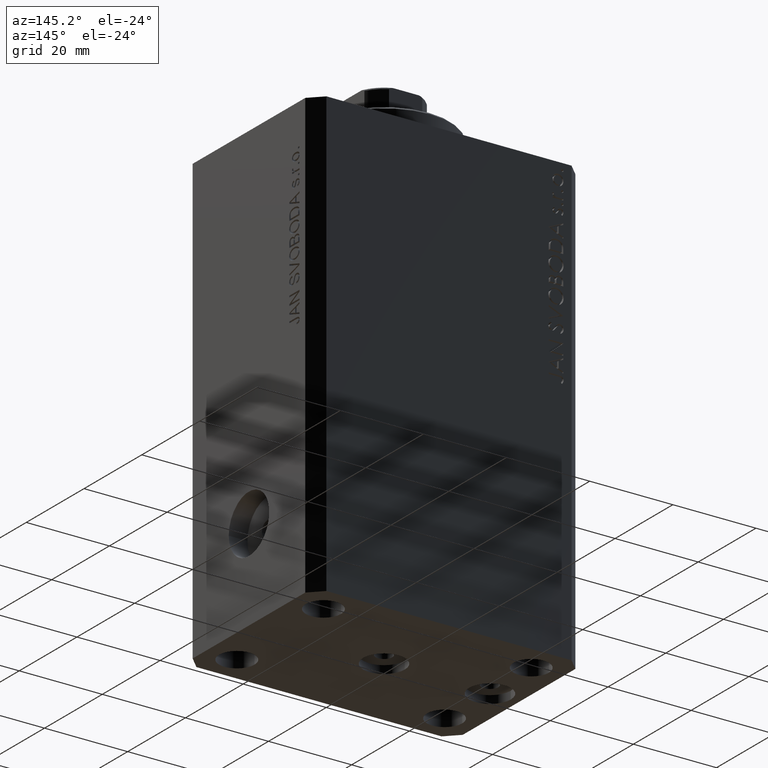
[diagram: clean part render]
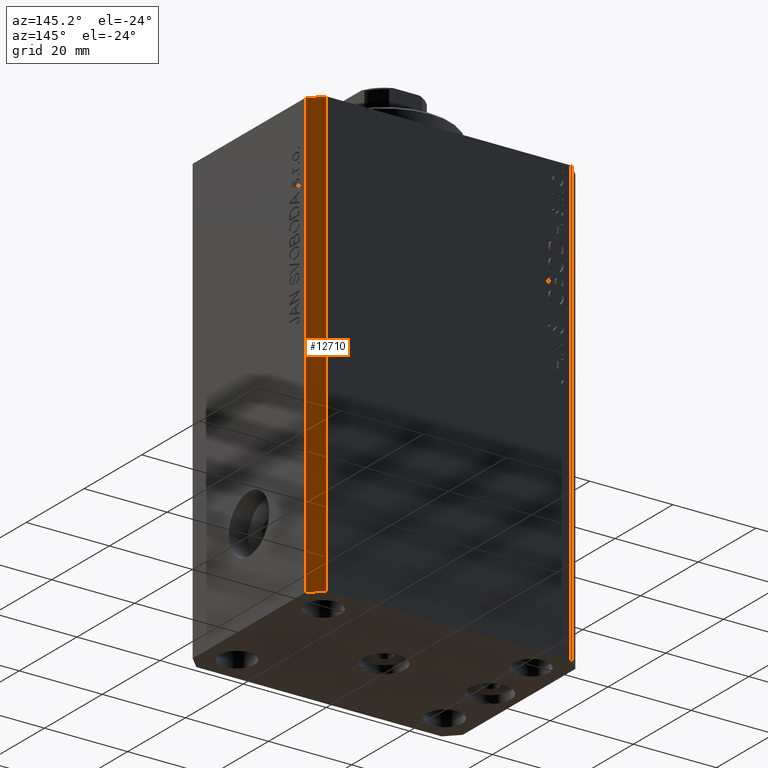
[diagram: same view with one face highlighted and labeled with its STEP entity id]
A machine part, auxiliary view. The second image highlights one B-rep face of the part: STEP entity #12710.
In plain terms, the highlighted planar face has unit normal (0.7071, 0.7071, 0).
Its self-contained STEP definition (entity closure, byte-faithful):
#4264 = ORIENTED_EDGE ( 'NONE', *, *, #36323, .T. ) ;
#4380 = FACE_OUTER_BOUND ( 'NONE', #42107, .T. ) ;
#5009 = CARTESIAN_POINT ( 'NONE',  ( 29.49999999999707967, 22.49999999999952038, 0.000000000000000000 ) ) ;
#5079 = DIRECTION ( 'NONE',  ( -0.7071067811865344721, 0.7071067811865606734, 0.000000000000000000 ) ) ;
#5434 = VERTEX_POINT ( 'NONE', #5009 ) ;
#5956 = AXIS2_PLACEMENT_3D ( 'NONE', #18115, #14520, #37729 ) ;
#6825 = CARTESIAN_POINT ( 'NONE',  ( 32.49999999999702993, 19.49999999999945999, 0.000000000000000000 ) ) ;
#7230 = DIRECTION ( 'NONE',  ( 0.000000000000000000, 0.000000000000000000, 1.000000000000000000 ) ) ;
#7411 = CARTESIAN_POINT ( 'NONE',  ( 32.49999999999702993, 19.49999999999945999, -107.0000000000000000 ) ) ;
#8225 = CARTESIAN_POINT ( 'NONE',  ( 32.49999999999702993, 19.49999999999945999, 0.000000000000000000 ) ) ;
#8969 = VECTOR ( 'NONE', #30796, 1000.000000000000000 ) ;
#10840 = LINE ( 'NONE', #20765, #29146 ) ;
#12710 = ADVANCED_FACE ( 'NONE', ( #4380 ), #28273, .T. ) ;
#14520 = DIRECTION ( 'NONE',  ( 0.7071067811865606734, 0.7071067811865344721, -0.000000000000000000 ) ) ;
#14781 = LINE ( 'NONE', #8225, #27617 ) ;
#16632 = VECTOR ( 'NONE', #24323, 1000.000000000000000 ) ;
#17264 = VERTEX_POINT ( 'NONE', #33831 ) ;
#18115 = CARTESIAN_POINT ( 'NONE',  ( 32.49999999999702993, 19.49999999999945999, -107.0000000000000000 ) ) ;
#20765 = CARTESIAN_POINT ( 'NONE',  ( 29.49999999999707967, 22.49999999999952038, -107.0000000000000000 ) ) ;
#21012 = EDGE_CURVE ( 'NONE', #28225, #5434, #14781, .T. ) ;
#21204 = ORIENTED_EDGE ( 'NONE', *, *, #21746, .F. ) ;
#21746 = EDGE_CURVE ( 'NONE', #26405, #28225, #31231, .T. ) ;
#23044 = EDGE_CURVE ( 'NONE', #17264, #5434, #10840, .T. ) ;
#24108 = LINE ( 'NONE', #40792, #16632 ) ;
#24323 = DIRECTION ( 'NONE',  ( -0.7071067811865344721, 0.7071067811865606734, 0.000000000000000000 ) ) ;
#26405 = VERTEX_POINT ( 'NONE', #7411 ) ;
#27110 = ORIENTED_EDGE ( 'NONE', *, *, #23044, .T. ) ;
#27617 = VECTOR ( 'NONE', #5079, 1000.000000000000000 ) ;
#28225 = VERTEX_POINT ( 'NONE', #6825 ) ;
#28273 = PLANE ( 'NONE',  #5956 ) ;
#29146 = VECTOR ( 'NONE', #7230, 1000.000000000000000 ) ;
#30796 = DIRECTION ( 'NONE',  ( 0.000000000000000000, 0.000000000000000000, 1.000000000000000000 ) ) ;
#31231 = LINE ( 'NONE', #37979, #8969 ) ;
#33831 = CARTESIAN_POINT ( 'NONE',  ( 29.49999999999707967, 22.49999999999952038, -107.0000000000000000 ) ) ;
#36323 = EDGE_CURVE ( 'NONE', #26405, #17264, #24108, .T. ) ;
#37215 = ORIENTED_EDGE ( 'NONE', *, *, #21012, .F. ) ;
#37729 = DIRECTION ( 'NONE',  ( -0.7071067811865344721, 0.7071067811865606734, 0.000000000000000000 ) ) ;
#37979 = CARTESIAN_POINT ( 'NONE',  ( 32.49999999999702993, 19.49999999999945999, -107.0000000000000000 ) ) ;
#40792 = CARTESIAN_POINT ( 'NONE',  ( 32.49999999999702993, 19.49999999999945999, -107.0000000000000000 ) ) ;
#42107 = EDGE_LOOP ( 'NONE', ( #37215, #21204, #4264, #27110 ) ) ;